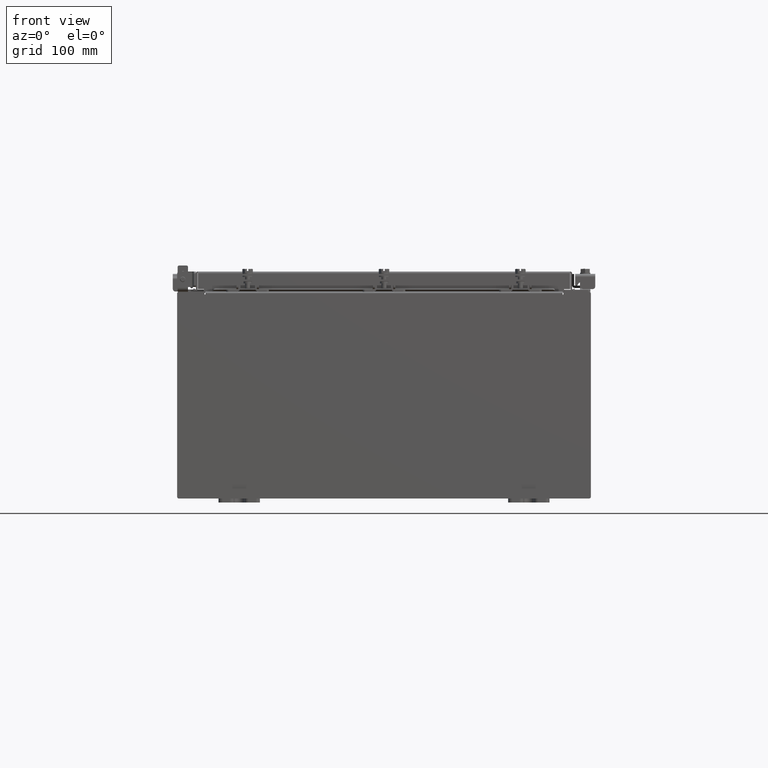
[diagram: clean part render]
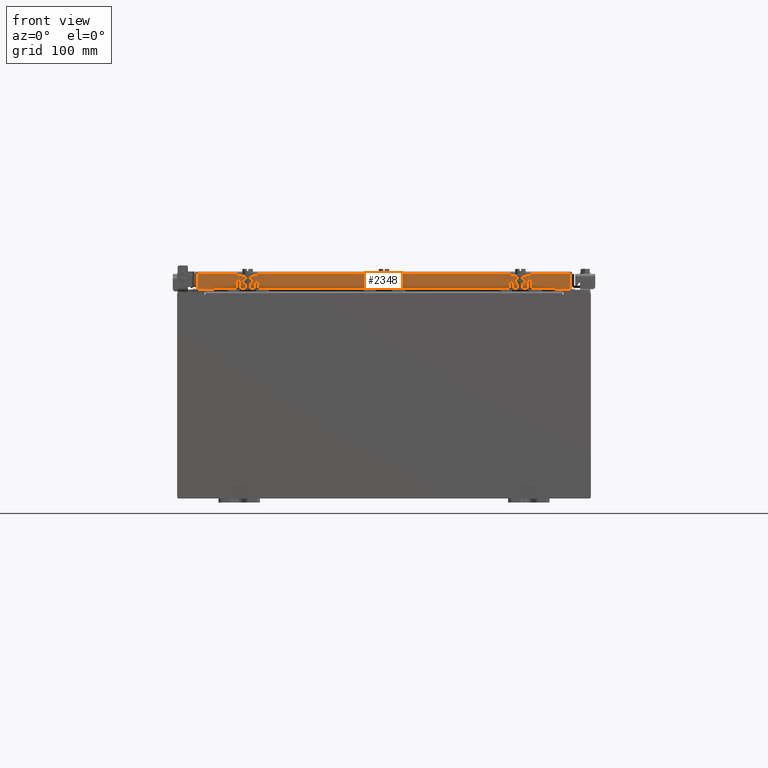
[diagram: same view with one face highlighted and labeled with its STEP entity id]
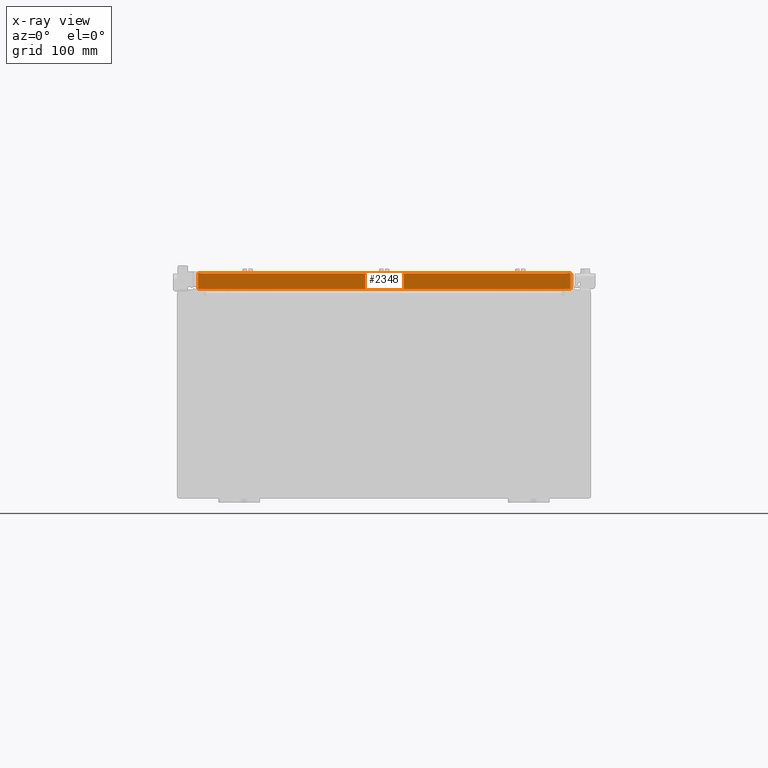
[diagram: x-ray of the same camera — body ghosted, the highlighted face saturated]
A machine part, front view. The second image highlights one B-rep face of the part: STEP entity #2348.
The next image is the same camera in x-ray: the body ghosted, the highlighted face saturated — about 0% of this face is hidden behind the body in this view.
In plain terms, the highlighted planar face has unit normal (-0, 1, -0).
Its self-contained STEP definition (entity closure, byte-faithful):
#199 = DIRECTION ( 'NONE',  ( 1.000000000000000000, 3.387180227794633400E-031, -9.232666117091638000E-046 ) ) ;
#495 = LINE ( 'NONE', #11455, #13820 ) ;
#1208 = VECTOR ( 'NONE', #7846, 39.37007874015748100 ) ;
#1754 = CARTESIAN_POINT ( 'NONE',  ( 9.005157864376265300, -11.09399999999999900, -0.8499999999999999800 ) ) ;
#2117 = CARTESIAN_POINT ( 'NONE',  ( -9.005157864376270600, -11.09399999999999800, -0.08770000000000026400 ) ) ;
#2348 = ADVANCED_FACE ( 'NONE', ( #19115 ), #12742, .F. ) ;
#2381 = CARTESIAN_POINT ( 'NONE',  ( 9.005157864376265300, -11.09399999999999800, -0.07470000000000015500 ) ) ;
#2775 = LINE ( 'NONE', #11061, #18877 ) ;
#2837 = CARTESIAN_POINT ( 'NONE',  ( 8.255157864376261800, -11.09399999999999900, -0.8500000000000020900 ) ) ;
#2895 = ORIENTED_EDGE ( 'NONE', *, *, #15446, .F. ) ;
#2975 = DIRECTION ( 'NONE',  ( -1.000000000000000000, 4.379057701015054300E-047, 1.201604571657912400E-016 ) ) ;
#3421 = DIRECTION ( 'NONE',  ( 0.0000000000000000000, -2.818880942772360100E-015, -1.000000000000000000 ) ) ;
#3974 = DIRECTION ( 'NONE',  ( -0.0000000000000000000, -2.818880942772360100E-015, -1.000000000000000000 ) ) ;
#4517 = EDGE_LOOP ( 'NONE', ( #19661, #15335, #2895, #6457, #17647, #7822 ) ) ;
#5035 = VERTEX_POINT ( 'NONE', #1754 ) ;
#5297 = CARTESIAN_POINT ( 'NONE',  ( 9.005157864376265300, -11.09399999999999800, -0.08770000000000026400 ) ) ;
#6217 = CARTESIAN_POINT ( 'NONE',  ( 9.093999999999997600, -11.09399999999999900, -0.8499999999999999800 ) ) ;
#6452 = LINE ( 'NONE', #14652, #14965 ) ;
#6457 = ORIENTED_EDGE ( 'NONE', *, *, #16787, .F. ) ;
#7822 = ORIENTED_EDGE ( 'NONE', *, *, #13299, .F. ) ;
#7846 = DIRECTION ( 'NONE',  ( -1.000000000000000000, 4.379057701015054300E-047, 1.201604571657912400E-016 ) ) ;
#8095 = CARTESIAN_POINT ( 'NONE',  ( 0.0000000000000000000, -11.09399999999999800, 3.059669752903974500E-014 ) ) ;
#8492 = CARTESIAN_POINT ( 'NONE',  ( -8.255157864376268900, -11.09399999999999900, -0.8500000000000020900 ) ) ;
#8813 = EDGE_CURVE ( 'NONE', #5035, #16306, #2775, .T. ) ;
#8864 = VECTOR ( 'NONE', #3974, 39.37007874015748100 ) ;
#8988 = DIRECTION ( 'NONE',  ( -1.000000000000000000, 0.0000000000000000000, 0.0000000000000000000 ) ) ;
#9476 = VERTEX_POINT ( 'NONE', #5297 ) ;
#9801 = LINE ( 'NONE', #6217, #1208 ) ;
#11042 = VERTEX_POINT ( 'NONE', #2117 ) ;
#11061 = CARTESIAN_POINT ( 'NONE',  ( 9.093999999999997600, -11.09399999999999900, -0.8499999999999999800 ) ) ;
#11455 = CARTESIAN_POINT ( 'NONE',  ( -9.005157864376270600, -11.09399999999999800, 3.059669752903974500E-014 ) ) ;
#11475 = EDGE_CURVE ( 'NONE', #11042, #9476, #6452, .T. ) ;
#12035 = VERTEX_POINT ( 'NONE', #12936 ) ;
#12531 = DIRECTION ( 'NONE',  ( 0.0000000000000000000, 2.818880942772360100E-015, 1.000000000000000000 ) ) ;
#12742 = PLANE ( 'NONE',  #18876 ) ;
#12936 = CARTESIAN_POINT ( 'NONE',  ( -9.005157864376270600, -11.09399999999999900, -0.8499999999999977600 ) ) ;
#13210 = VECTOR ( 'NONE', #8988, 39.37007874015748100 ) ;
#13299 = EDGE_CURVE ( 'NONE', #9476, #5035, #13611, .T. ) ;
#13611 = LINE ( 'NONE', #2381, #8864 ) ;
#13820 = VECTOR ( 'NONE', #3421, 39.37007874015748100 ) ;
#13971 = EDGE_CURVE ( 'NONE', #11042, #12035, #495, .T. ) ;
#14652 = CARTESIAN_POINT ( 'NONE',  ( 9.093999999999997600, -11.09399999999999800, -0.08770000000000026400 ) ) ;
#14965 = VECTOR ( 'NONE', #199, 39.37007874015748100 ) ;
#15335 = ORIENTED_EDGE ( 'NONE', *, *, #13971, .T. ) ;
#15446 = EDGE_CURVE ( 'NONE', #20136, #12035, #9801, .T. ) ;
#16306 = VERTEX_POINT ( 'NONE', #2837 ) ;
#16449 = LINE ( 'NONE', #18541, #13210 ) ;
#16787 = EDGE_CURVE ( 'NONE', #16306, #20136, #16449, .T. ) ;
#17647 = ORIENTED_EDGE ( 'NONE', *, *, #8813, .F. ) ;
#18541 = CARTESIAN_POINT ( 'NONE',  ( 8.255157864376261800, -11.09399999999999900, -0.8500000000000020900 ) ) ;
#18876 = AXIS2_PLACEMENT_3D ( 'NONE', #8095, #20187, #12531 ) ;
#18877 = VECTOR ( 'NONE', #2975, 39.37007874015748100 ) ;
#19115 = FACE_OUTER_BOUND ( 'NONE', #4517, .T. ) ;
#19661 = ORIENTED_EDGE ( 'NONE', *, *, #11475, .F. ) ;
#20136 = VERTEX_POINT ( 'NONE', #8492 ) ;
#20187 = DIRECTION ( 'NONE',  ( -3.387180227794633400E-031, 1.000000000000000000, -2.818880942772360100E-015 ) ) ;